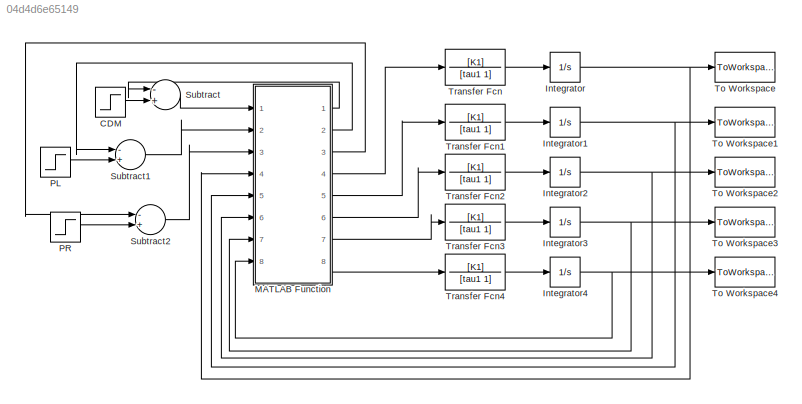
MODEL slx_04d4d6e65149
KIND model
CONFIG AbsTol = auto
CONFIG FixedStep = auto
CONFIG MaxStep = auto
CONFIG MinStep = auto
CONFIG RelTol = 1e-3
CONFIG SampleTimeConstraint = Unconstrained
CONFIG Solver = ode45
CONFIG SolverMode = Auto
CONFIG SolverName = ode45
CONFIG StartTime = 0.0
CONFIG StopTime = 10.0
BLOCK [Step] CDM
  After = CDMv
  Before = CDMv
  SampleTime = 0
BLOCK [Integrator] Integrator
  InitialCondition = th1_0
  Ports = [1, 1]
BLOCK [Integrator] Integrator1
  InitialCondition = th2_0
  Ports = [1, 1]
BLOCK [Integrator] Integrator2
  InitialCondition = th3_0
  Ports = [1, 1]
BLOCK [Integrator] Integrator3
  InitialCondition = th4_0
  Ports = [1, 1]
BLOCK [Integrator] Integrator4
  InitialCondition = th5_0
  Ports = [1, 1]
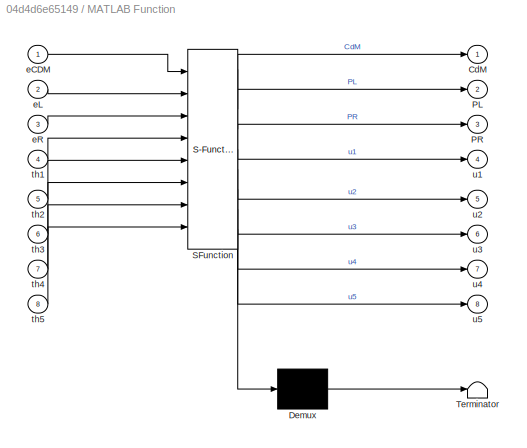
BLOCK [SubSystem] MATLAB Function
  ErrorFcn = Stateflow.Translate.translate
  PermitHierarchicalResolution = ParametersOnly
  Ports = [8, 8]
  RequestExecContextInheritance = off
  SFBlockType = MATLAB Function
  TreatAsAtomicUnit = on
  Variant = off
BLOCK [Demux] MATLAB Function/ Demux 
  Outputs = 1
  Ports = [1, 1]
BLOCK [S-Function] MATLAB Function/ SFunction 
  EnableBusSupport = on
  FunctionName = sf_sfun
  PortCounts = [8 9]
  Ports = [8, 9]
  SFunctionDeploymentMode = off
  Tag = Stateflow S-Function sim 2
BLOCK [Terminator] MATLAB Function/ Terminator 
BLOCK [Outport] MATLAB Function/CdM
  IconDisplay = Port number
BLOCK [Outport] MATLAB Function/PL
  IconDisplay = Port number
  Port = 2
BLOCK [Outport] MATLAB Function/PR
  IconDisplay = Port number
  Port = 3
BLOCK [Inport] MATLAB Function/eCDM
  IconDisplay = Port number
BLOCK [Inport] MATLAB Function/eL
  IconDisplay = Port number
  Port = 2
BLOCK [Inport] MATLAB Function/eR
  IconDisplay = Port number
  Port = 3
BLOCK [Inport] MATLAB Function/th1
  IconDisplay = Port number
  Port = 4
BLOCK [Inport] MATLAB Function/th2
  IconDisplay = Port number
  Port = 5
BLOCK [Inport] MATLAB Function/th3
  IconDisplay = Port number
  Port = 6
BLOCK [Inport] MATLAB Function/th4
  IconDisplay = Port number
  Port = 7
BLOCK [Inport] MATLAB Function/th5
  IconDisplay = Port number
  Port = 8
BLOCK [Outport] MATLAB Function/u1
  IconDisplay = Port number
  Port = 4
BLOCK [Outport] MATLAB Function/u2
  IconDisplay = Port number
  Port = 5
BLOCK [Outport] MATLAB Function/u3
  IconDisplay = Port number
  Port = 6
BLOCK [Outport] MATLAB Function/u4
  IconDisplay = Port number
  Port = 7
BLOCK [Outport] MATLAB Function/u5
  IconDisplay = Port number
  Port = 8
BLOCK [Step] PL
  After = PLv
  Before = PLv
  SampleTime = 0
BLOCK [Step] PR
  After = PRv
  Before = PRv
  SampleTime = 0
BLOCK [Sum] Subtract
  InputSameDT = off
  Inputs = -+
  OutDataTypeStr = Inherit: Inherit via internal rule
  Ports = [2, 1]
  SaturateOnIntegerOverflow = off
BLOCK [Sum] Subtract1
  InputSameDT = off
  Inputs = -+
  OutDataTypeStr = Inherit: Inherit via internal rule
  Ports = [2, 1]
  SaturateOnIntegerOverflow = off
BLOCK [Sum] Subtract2
  InputSameDT = off
  Inputs = -+
  OutDataTypeStr = Inherit: Inherit via internal rule
  Ports = [2, 1]
  SaturateOnIntegerOverflow = off
BLOCK [ToWorkspace] To Workspace
  FixptAsFi = on
  MaxDataPoints = inf
  Ports = [1]
  SampleTime = -1
  Save2DSignal = 3-D array (concatenate along third dimension)
  VariableName = TH1
BLOCK [ToWorkspace] To Workspace1
  FixptAsFi = on
  MaxDataPoints = inf
  Ports = [1]
  SampleTime = -1
  Save2DSignal = 3-D array (concatenate along third dimension)
  VariableName = TH2
BLOCK [ToWorkspace] To Workspace2
  FixptAsFi = on
  MaxDataPoints = inf
  Ports = [1]
  SampleTime = -1
  Save2DSignal = 3-D array (concatenate along third dimension)
  VariableName = TH3
BLOCK [ToWorkspace] To Workspace3
  FixptAsFi = on
  MaxDataPoints = inf
  Ports = [1]
  SampleTime = -1
  Save2DSignal = 3-D array (concatenate along third dimension)
  VariableName = TH4
BLOCK [ToWorkspace] To Workspace4
  FixptAsFi = on
  MaxDataPoints = inf
  Ports = [1]
  SampleTime = -1
  Save2DSignal = 3-D array (concatenate along third dimension)
  VariableName = TH5
BLOCK [TransferFcn] Transfer Fcn
  Denominator = [tau1 1]
  Numerator = [K1]
BLOCK [TransferFcn] Transfer Fcn1
  Denominator = [tau1 1]
  Numerator = [K1]
BLOCK [TransferFcn] Transfer Fcn2
  Denominator = [tau1 1]
  Numerator = [K1]
BLOCK [TransferFcn] Transfer Fcn3
  Denominator = [tau1 1]
  Numerator = [K1]
BLOCK [TransferFcn] Transfer Fcn4
  Denominator = [tau1 1]
  Numerator = [K1]
LINE CDM:1 -> Subtract:2
NET Integrator1:1 -> MATLAB Function:5, To Workspace1:1
NET Integrator2:1 -> MATLAB Function:6, To Workspace2:1
NET Integrator3:1 -> MATLAB Function:7, To Workspace3:1
NET Integrator4:1 -> MATLAB Function:8, To Workspace4:1
NET Integrator:1 -> MATLAB Function:4, To Workspace:1
LINE MATLAB Function:1 -> Subtract:1
LINE MATLAB Function:2 -> Subtract1:1
LINE MATLAB Function:3 -> Subtract2:1
LINE MATLAB Function:4 -> Transfer Fcn:1
LINE MATLAB Function:5 -> Transfer Fcn1:1
LINE MATLAB Function:6 -> Transfer Fcn2:1
LINE MATLAB Function:7 -> Transfer Fcn3:1
LINE MATLAB Function:8 -> Transfer Fcn4:1
LINE PL:1 -> Subtract1:2
LINE PR:1 -> Subtract2:2
LINE Subtract1:1 -> MATLAB Function:2
LINE Subtract2:1 -> MATLAB Function:3
LINE Subtract:1 -> MATLAB Function:1
LINE Transfer Fcn1:1 -> Integrator1:1
LINE Transfer Fcn2:1 -> Integrator2:1
LINE Transfer Fcn3:1 -> Integrator3:1
LINE Transfer Fcn4:1 -> Integrator4:1
LINE Transfer Fcn:1 -> Integrator:1
note: NET lines group one-source signal fan-out (src -> all destinations, sorted); 1:1 wires keep LINE
CHART MATLAB Function states=1 transitions=1
  STATE_LABEL 'eML_blk_kernel()'
  STATE_LABEL 'SCRIPT:\nfunction [CdM,PL,PR,u1,u2,u3,u4,u5] = fcn(eCDM, eL, eR, th1, th2, th3, th4, th5)\n\nle = 0.3; l1 = 0.7; l2 = 0.4; l3 = 0.3; l4 = 0.4; l5 = 0.3;\nc1 = 0.6; c2 = 0.2; c3 = 0.15; c4 = 0.2; c5 = 0.15;\nm1 = 20; m2 = 6; m3 = 4; m4 = 6; m5 = 4;\n\nJL = [-l1*cos(th1)-(le/2)*sin(th1)+l2*sin(-th1+th2)+l3*sin(-th1+th2-th3) -l2*sin(-th1+th2)-l3*sin(-th1+th2-th3) l3*sin(-th1+th2-th3) 0 0];\nJR = [-l1*cos(th1...<+1458ch>'
